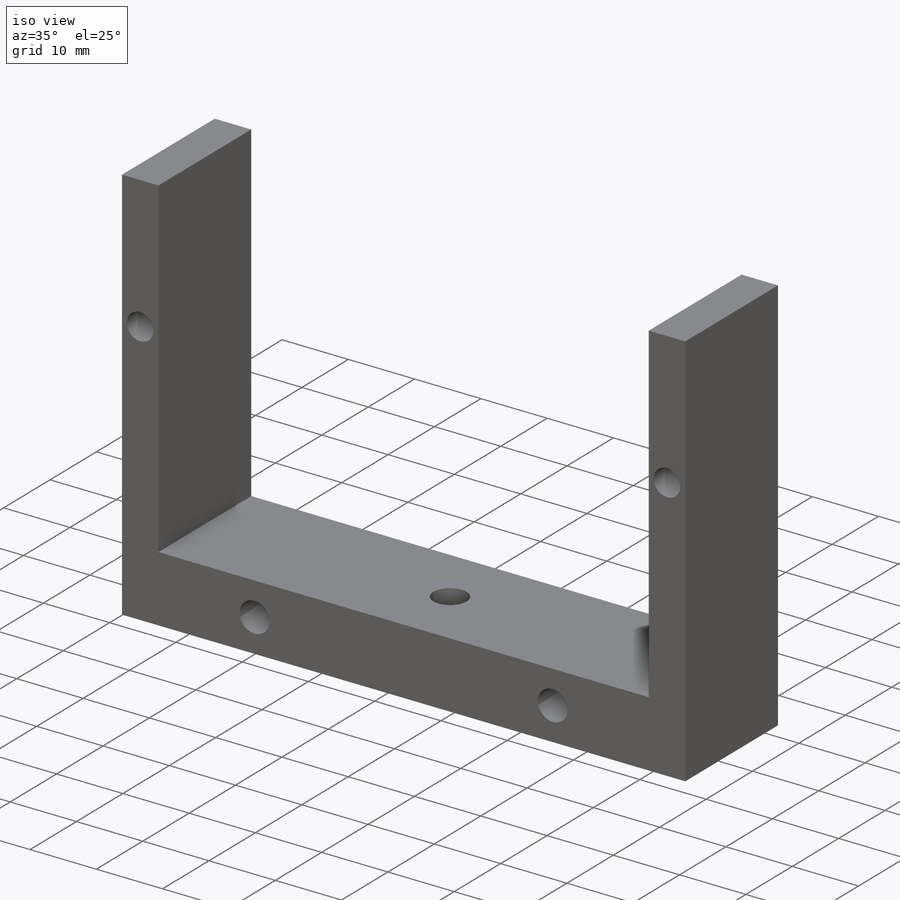
[diagram: iso view]
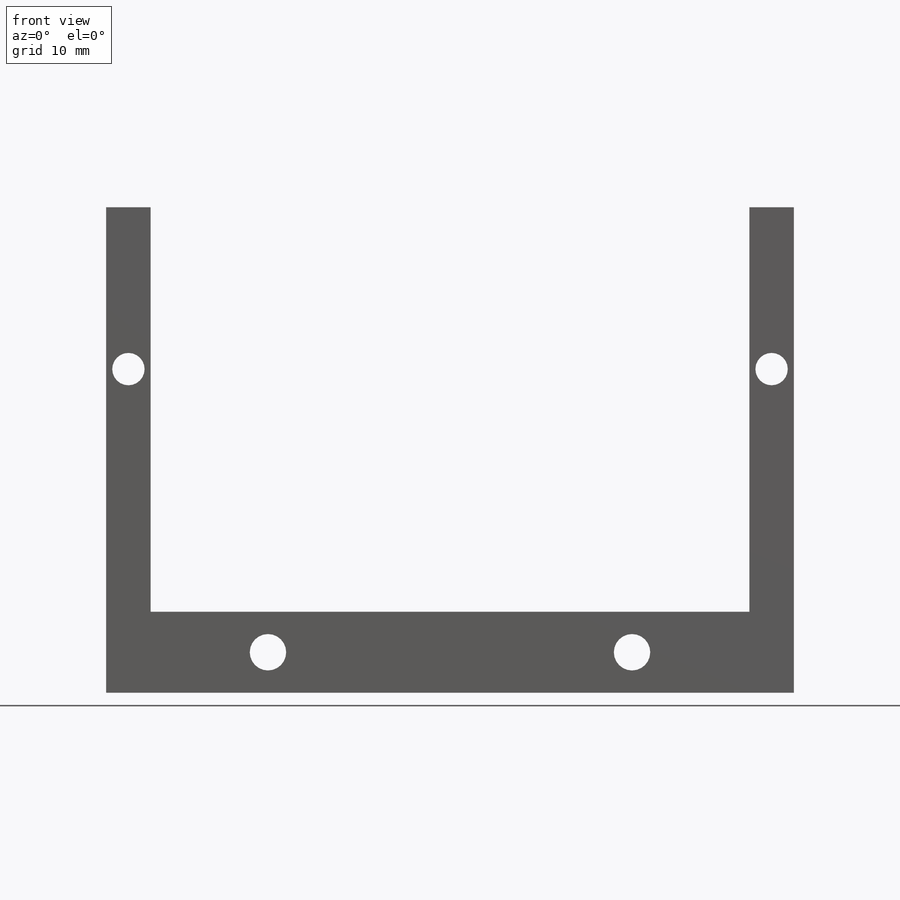
[diagram: front view]
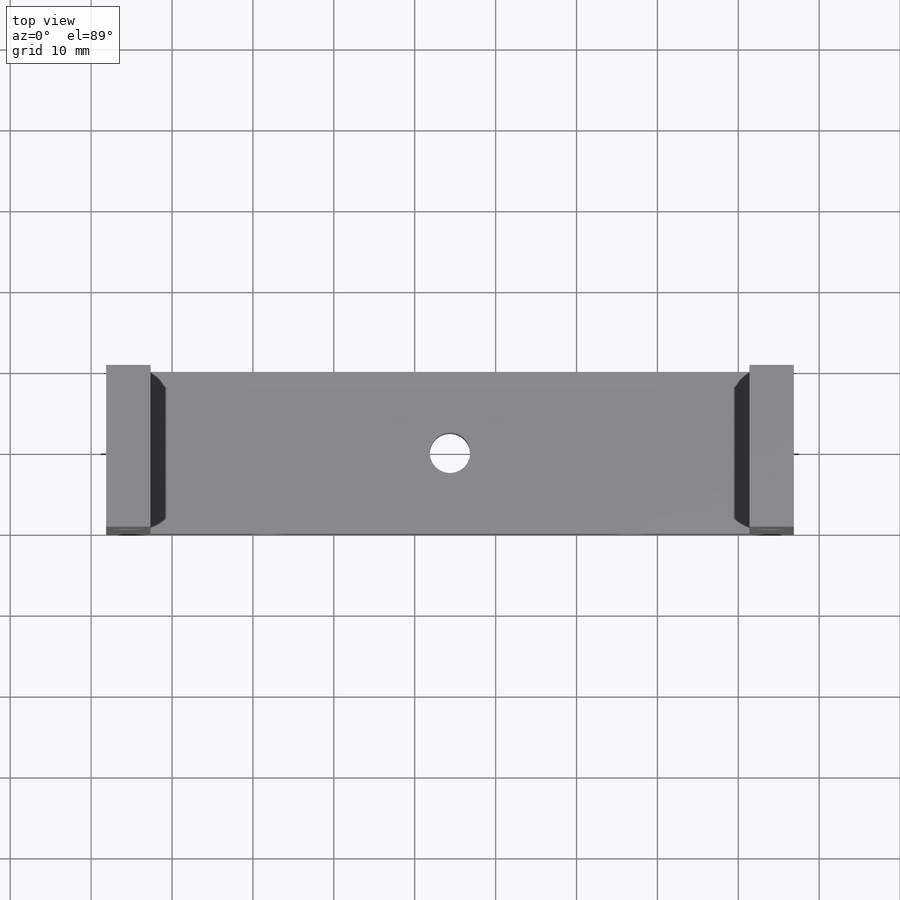
[diagram: top view]
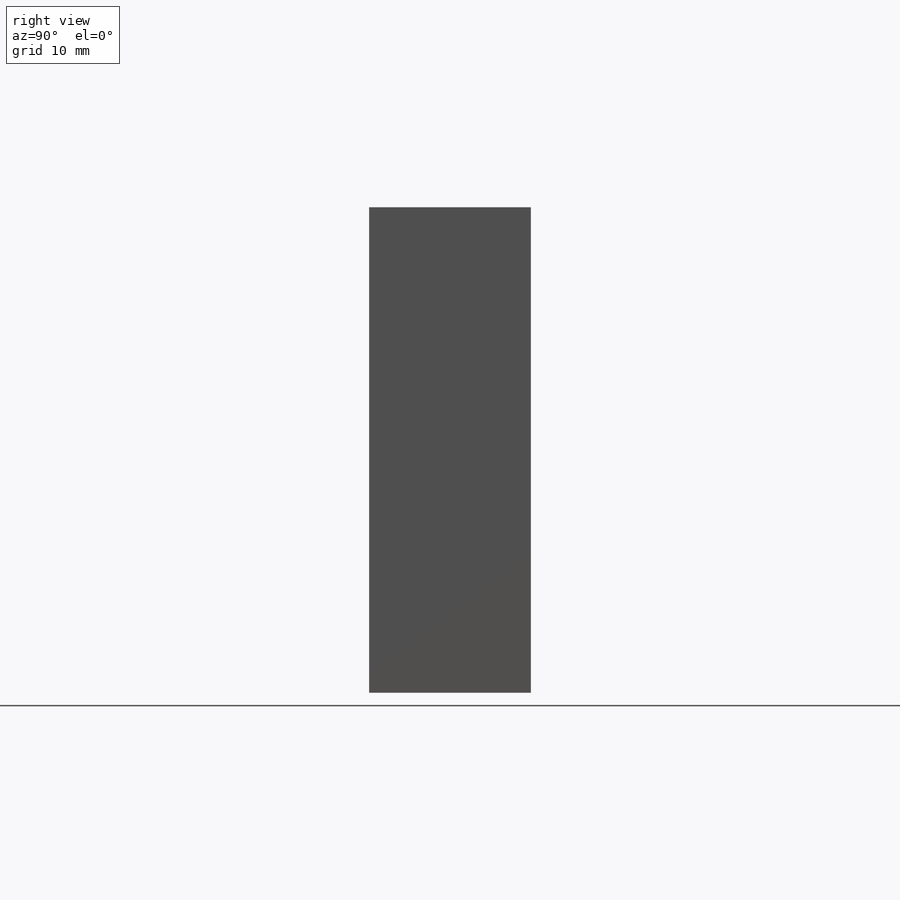
[diagram: right view]
SOLIDWORKS PART (.sldprt)
format: sldprt  version: not decoded by parser v0  size: 177,664 bytes
history: native  units: mm
features: sketch x4, cut_extrude x3, material x1, extrude x1 (+11 scaffold rows collapsed)
feature tree (20):
  scaffold x11  (default folders/planes/origin — collapsed)
  material  "Material <not specified>"
  sketch  "Sketch1"  dims[D1=85.0mm D2=60.0mm D3=60.0mm D4=10.0mm D5=5.5mm D6=5.5mm]
  extrude  "Boss-Extrude1"  Depth=20mm
  sketch  "Sketch2"  dims[c1.D1=~8.433256mm c1.D2=~8.581512mm c1.D3=~8.433256mm c1.D4=~8.581512mm c1.D5=4.5mm c1.D6=4.5mm c2.D1=5.0mm c2.D2=5.0mm c2.D3=20.0mm c2.D4=20.0mm]
  cut_extrude  "Cut-Extrude1"  Depth=20mm
  sketch  "Sketch3"  dims[c1.D1=4.0mm c1.D2=4.0mm c1.D3=~4.736942mm c1.D4=~4.736942mm c1.D5=4.0mm c1.D6=4.0mm c2.D2=2.75mm c2.D3=2.75mm c2.D4=20.0mm c2.D5=20.0mm]
  cut_extrude  "Cut-Extrude2"  [1 undecoded]
  sketch  "Sketch4"  dims[c1.D1=~7.967133mm c1.D2=~7.967133mm c1.D3=5.0mm c2.D1=42.5mm c2.D2=10.0mm]
  cut_extrude  "Cut-Extrude3"  [1 undecoded]
decode coverage: 6 of 8 modeling features carry decoded parameters
note: ~ marks probable driven/reference dimensions
note: 2 parameter values undecoded
note: suppression state not decoded; provenance and decode notes live in map.json
